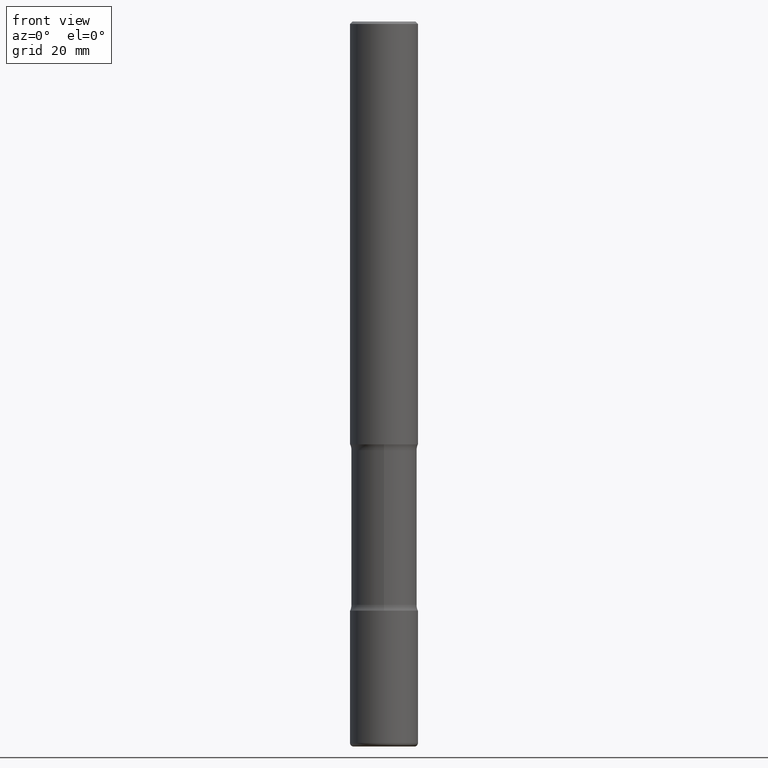
[diagram: clean part render]
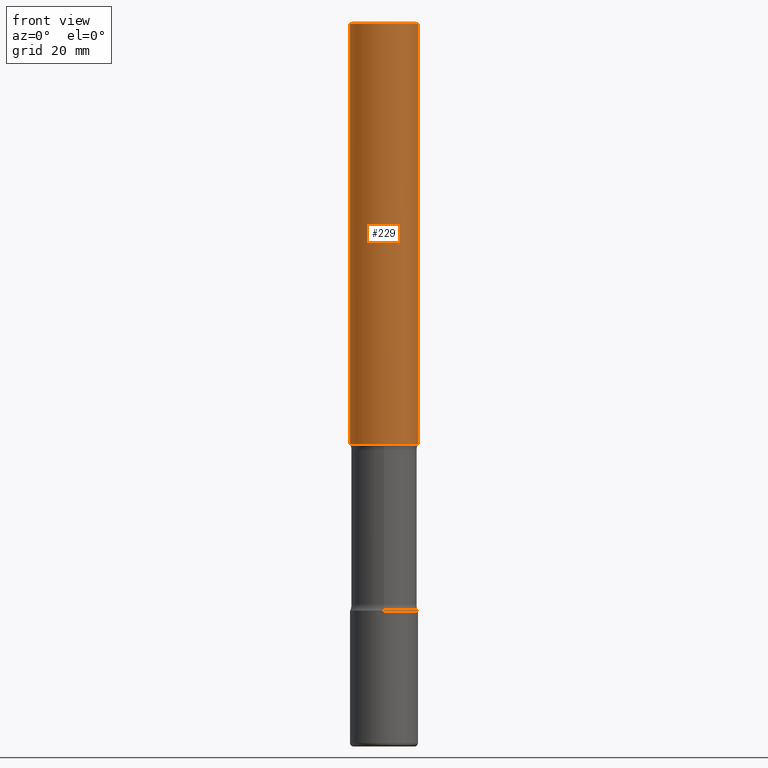
[diagram: same view with one face highlighted and labeled with its STEP entity id]
A machine part, front view. The second image highlights one B-rep face of the part: STEP entity #229.
In plain terms, the highlighted cylindrical surface (edge-blend (fillet) strip) has radius 7.1438 mm, axis along (-0, 0, 1).
Its self-contained STEP definition (entity closure, byte-faithful):
#13 = EDGE_CURVE ( 'NONE', #408, #396, #46, .T. ) ;
#14 = CIRCLE ( 'NONE', #494, 0.2812500000000004441 ) ;
#46 = LINE ( 'NONE', #394, #68 ) ;
#52 = DIRECTION ( 'NONE',  ( -2.445468806185136877E-29, 3.491481338843145188E-15, 1.000000000000000000 ) ) ;
#62 = ORIENTED_EDGE ( 'NONE', *, *, #519, .F. ) ;
#68 = VECTOR ( 'NONE', #52, 39.37007874015748143 ) ;
#79 = VERTEX_POINT ( 'NONE', #499 ) ;
#139 = EDGE_CURVE ( 'NONE', #175, #408, #14, .T. ) ;
#145 = CIRCLE ( 'NONE', #531, 0.2812500000000002220 ) ;
#175 = VERTEX_POINT ( 'NONE', #261 ) ;
#176 = DIRECTION ( 'NONE',  ( -2.445468806185136597E-29, 3.491481338843145583E-15, 1.000000000000000000 ) ) ;
#194 = CARTESIAN_POINT ( 'NONE',  ( 0.2812500000000002220, -1.999344688650107733E-15, -0.02000000000000000042 ) ) ;
#203 = DIRECTION ( 'NONE',  ( 1.000000000000000000, -6.982962677686265133E-15, 0.000000000000000000 ) ) ;
#212 = EDGE_LOOP ( 'NONE', ( #332, #252, #216, #62 ) ) ;
#216 = ORIENTED_EDGE ( 'NONE', *, *, #13, .T. ) ;
#223 = DIRECTION ( 'NONE',  ( 1.000000000000000000, -6.982962677686265133E-15, 4.876176775795935232E-29 ) ) ;
#225 = DIRECTION ( 'NONE',  ( 1.000000000000000000, -6.982962677686265133E-15, 0.000000000000000000 ) ) ;
#229 = ADVANCED_FACE ( 'NONE', ( #558 ), #385, .T. ) ;
#249 = CARTESIAN_POINT ( 'NONE',  ( 4.890937612370273159E-31, -6.982962677686291609E-17, -0.02000000000000000042 ) ) ;
#252 = ORIENTED_EDGE ( 'NONE', *, *, #139, .T. ) ;
#261 = CARTESIAN_POINT ( 'NONE',  ( -0.2812500000000004441, -4.146605712038649025E-15, -3.500000000000000444 ) ) ;
#277 = DIRECTION ( 'NONE',  ( -2.445468806185136597E-29, 3.491481338843145583E-15, 1.000000000000000000 ) ) ;
#280 = AXIS2_PLACEMENT_3D ( 'NONE', #342, #176, #223 ) ;
#319 = DIRECTION ( 'NONE',  ( -2.445468806185136877E-29, 3.491481338843145188E-15, 1.000000000000000000 ) ) ;
#332 = ORIENTED_EDGE ( 'NONE', *, *, #341, .F. ) ;
#341 = EDGE_CURVE ( 'NONE', #175, #79, #351, .T. ) ;
#342 = CARTESIAN_POINT ( 'NONE',  ( 0.000000000000000000, 0.000000000000000000, 0.000000000000000000 ) ) ;
#351 = LINE ( 'NONE', #439, #540 ) ;
#358 = CARTESIAN_POINT ( 'NONE',  ( 0.2812500000000004441, -1.418414293905027580E-14, -3.500000000000000444 ) ) ;
#385 = CYLINDRICAL_SURFACE ( 'NONE', #280, 0.2812500000000003331 ) ;
#394 = CARTESIAN_POINT ( 'NONE',  ( 0.2812500000000003331, -1.963958253099264484E-15, 1.371424718192608413E-29 ) ) ;
#396 = VERTEX_POINT ( 'NONE', #194 ) ;
#408 = VERTEX_POINT ( 'NONE', #358 ) ;
#439 = CARTESIAN_POINT ( 'NONE',  ( -0.2812500000000003331, 1.998401444325284139E-15, -1.383450494134193670E-29 ) ) ;
#449 = DIRECTION ( 'NONE',  ( -2.445468806185136597E-29, 3.491481338843145583E-15, 1.000000000000000000 ) ) ;
#494 = AXIS2_PLACEMENT_3D ( 'NONE', #553, #277, #225 ) ;
#499 = CARTESIAN_POINT ( 'NONE',  ( -0.2812500000000002220, 1.894128626322401186E-15, -0.02000000000000000042 ) ) ;
#519 = EDGE_CURVE ( 'NONE', #79, #396, #145, .T. ) ;
#531 = AXIS2_PLACEMENT_3D ( 'NONE', #249, #449, #203 ) ;
#540 = VECTOR ( 'NONE', #319, 39.37007874015748143 ) ;
#553 = CARTESIAN_POINT ( 'NONE',  ( 8.559140821647978089E-29, -1.222018468595101092E-14, -3.500000000000000444 ) ) ;
#558 = FACE_OUTER_BOUND ( 'NONE', #212, .T. ) ;